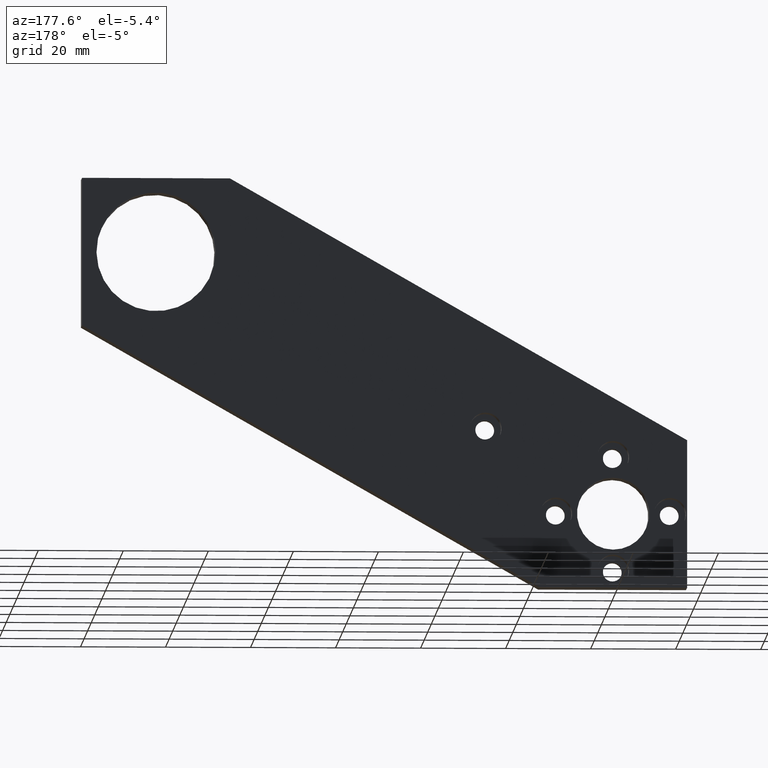
[diagram: clean part render]
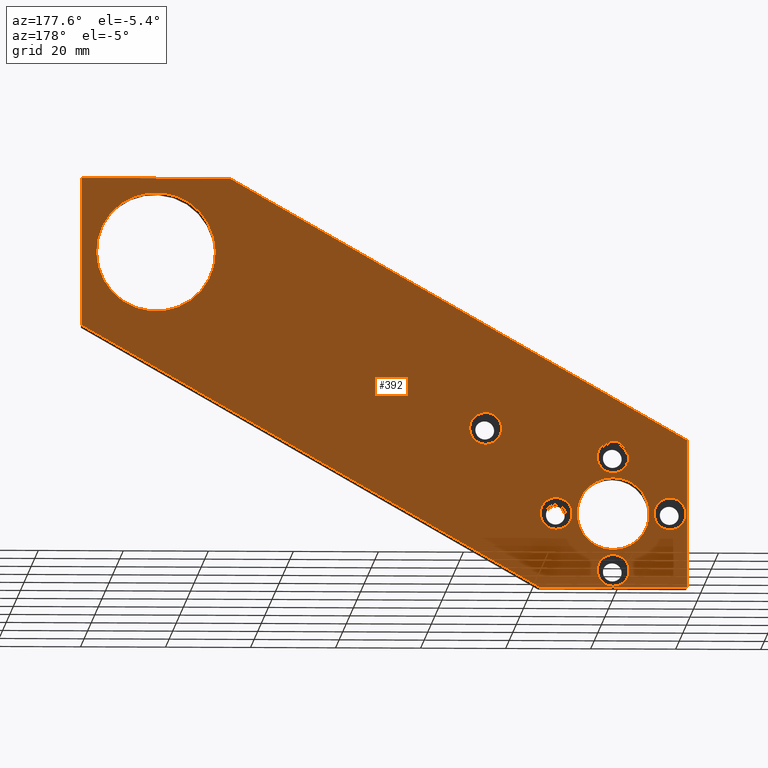
[diagram: same view with one face highlighted and labeled with its STEP entity id]
A machine part, auxiliary view. The second image highlights one B-rep face of the part: STEP entity #392.
In plain terms, the highlighted planar face has unit normal (0, 1, 0).
Its self-contained STEP definition (entity closure, byte-faithful):
#24=LINE('',#611,#42);
#27=LINE('',#616,#45);
#29=LINE('',#663,#47);
#30=LINE('',#665,#48);
#31=LINE('',#667,#49);
#32=LINE('',#668,#50);
#42=VECTOR('',#489,10.);
#45=VECTOR('',#494,10.);
#47=VECTOR('',#552,1000.);
#48=VECTOR('',#553,1000.);
#49=VECTOR('',#554,1000.);
#50=VECTOR('',#555,1000.);
#57=PLANE('',#449);
#86=FACE_BOUND('',#158,.T.);
#87=FACE_BOUND('',#159,.T.);
#88=FACE_BOUND('',#160,.T.);
#89=FACE_BOUND('',#161,.T.);
#90=FACE_BOUND('',#162,.T.);
#91=FACE_BOUND('',#163,.T.);
#92=FACE_BOUND('',#164,.T.);
#113=FACE_OUTER_BOUND('',#157,.T.);
#157=EDGE_LOOP('',(#326,#327,#328,#329,#330,#331));
#158=EDGE_LOOP('',(#332));
#159=EDGE_LOOP('',(#333));
#160=EDGE_LOOP('',(#334));
#161=EDGE_LOOP('',(#335));
#162=EDGE_LOOP('',(#336));
#163=EDGE_LOOP('',(#337));
#164=EDGE_LOOP('',(#338));
#180=CIRCLE('',#412,14.);
#188=CIRCLE('',#424,3.75);
#191=CIRCLE('',#429,3.75);
#194=CIRCLE('',#434,3.75);
#197=CIRCLE('',#439,3.75);
#200=CIRCLE('',#444,3.75);
#202=CIRCLE('',#448,8.5);
#204=VERTEX_POINT('',#581);
#217=VERTEX_POINT('',#609);
#218=VERTEX_POINT('',#610);
#219=VERTEX_POINT('',#615);
#221=VERTEX_POINT('',#621);
#224=VERTEX_POINT('',#629);
#227=VERTEX_POINT('',#637);
#230=VERTEX_POINT('',#645);
#233=VERTEX_POINT('',#653);
#235=VERTEX_POINT('',#659);
#236=VERTEX_POINT('',#662);
#237=VERTEX_POINT('',#664);
#238=VERTEX_POINT('',#666);
#240=EDGE_CURVE('',#204,#204,#180,.T.);
#253=EDGE_CURVE('',#217,#218,#24,.T.);
#256=EDGE_CURVE('',#219,#217,#27,.T.);
#259=EDGE_CURVE('',#221,#221,#188,.T.);
#262=EDGE_CURVE('',#224,#224,#191,.T.);
#265=EDGE_CURVE('',#227,#227,#194,.T.);
#268=EDGE_CURVE('',#230,#230,#197,.T.);
#271=EDGE_CURVE('',#233,#233,#200,.T.);
#273=EDGE_CURVE('',#235,#235,#202,.T.);
#274=EDGE_CURVE('',#236,#218,#29,.T.);
#275=EDGE_CURVE('',#219,#237,#30,.T.);
#276=EDGE_CURVE('',#237,#238,#31,.T.);
#277=EDGE_CURVE('',#238,#236,#32,.T.);
#326=ORIENTED_EDGE('',*,*,#274,.T.);
#327=ORIENTED_EDGE('',*,*,#253,.F.);
#328=ORIENTED_EDGE('',*,*,#256,.F.);
#329=ORIENTED_EDGE('',*,*,#275,.T.);
#330=ORIENTED_EDGE('',*,*,#276,.T.);
#331=ORIENTED_EDGE('',*,*,#277,.T.);
#332=ORIENTED_EDGE('',*,*,#240,.T.);
#333=ORIENTED_EDGE('',*,*,#259,.F.);
#334=ORIENTED_EDGE('',*,*,#262,.F.);
#335=ORIENTED_EDGE('',*,*,#265,.F.);
#336=ORIENTED_EDGE('',*,*,#268,.F.);
#337=ORIENTED_EDGE('',*,*,#271,.F.);
#338=ORIENTED_EDGE('',*,*,#273,.F.);
#392=ADVANCED_FACE('',(#113,#86,#87,#88,#89,#90,#91,#92),#57,.T.);
#412=AXIS2_PLACEMENT_3D('',#582,#465,#466);
#424=AXIS2_PLACEMENT_3D('',#622,#500,#501);
#429=AXIS2_PLACEMENT_3D('',#630,#510,#511);
#434=AXIS2_PLACEMENT_3D('',#638,#520,#521);
#439=AXIS2_PLACEMENT_3D('',#646,#530,#531);
#444=AXIS2_PLACEMENT_3D('',#654,#540,#541);
#448=AXIS2_PLACEMENT_3D('',#660,#548,#549);
#449=AXIS2_PLACEMENT_3D('',#661,#550,#551);
#465=DIRECTION('center_axis',(0.,-1.,0.));
#466=DIRECTION('ref_axis',(-1.,0.,0.));
#489=DIRECTION('',(-1.,0.,0.));
#494=DIRECTION('',(0.,0.,1.));
#500=DIRECTION('center_axis',(0.,1.,0.));
#501=DIRECTION('ref_axis',(0.,0.,1.));
#510=DIRECTION('center_axis',(0.,1.,0.));
#511=DIRECTION('ref_axis',(0.,0.,1.));
#520=DIRECTION('center_axis',(0.,1.,0.));
#521=DIRECTION('ref_axis',(0.,0.,1.));
#530=DIRECTION('center_axis',(0.,1.,0.));
#531=DIRECTION('ref_axis',(0.,0.,1.));
#540=DIRECTION('center_axis',(0.,1.,0.));
#541=DIRECTION('ref_axis',(0.,0.,1.));
#548=DIRECTION('center_axis',(0.,1.,0.));
#549=DIRECTION('ref_axis',(0.,0.,1.));
#550=DIRECTION('center_axis',(0.,1.,0.));
#551=DIRECTION('ref_axis',(0.,0.,1.));
#552=DIRECTION('',(0.868496911613889,0.,0.49569457785731));
#553=DIRECTION('',(-0.868496911613889,0.,-0.49569457785731));
#554=DIRECTION('',(-1.,0.,0.));
#555=DIRECTION('',(0.,0.,1.));
#581=CARTESIAN_POINT('',(93.9980251845734,6.35,64.9240705994484));
#582=CARTESIAN_POINT('Origin',(107.541888,6.35,61.3795283106746));
#609=CARTESIAN_POINT('',(124.941888,6.35,78.7795283106746));
#610=CARTESIAN_POINT('',(90.141888,6.35,78.7795283106746));
#611=CARTESIAN_POINT('',(94.496888,6.35,78.7795283106746));
#615=CARTESIAN_POINT('',(124.941888,6.35,43.9795283106746));
#616=CARTESIAN_POINT('',(124.941888,6.35,67.599619733006));
#621=CARTESIAN_POINT('',(30.,6.35,23.75));
#622=CARTESIAN_POINT('Origin',(30.,6.35,20.));
#629=CARTESIAN_POINT('',(13.4,6.35,3.74999999999986));
#630=CARTESIAN_POINT('Origin',(13.4,6.35,-1.40357549821494E-13));
#637=CARTESIAN_POINT('',(0.,6.35,17.15));
#638=CARTESIAN_POINT('Origin',(0.,6.35,13.4));
#645=CARTESIAN_POINT('',(-13.4,6.35,3.75000000000005));
#646=CARTESIAN_POINT('Origin',(-13.4,6.35,4.6785849940498E-14));
#653=CARTESIAN_POINT('',(0.,6.35,-9.65));
#654=CARTESIAN_POINT('Origin',(0.,6.35,-13.4));
#659=CARTESIAN_POINT('',(0.,6.35,-8.5));
#660=CARTESIAN_POINT('Origin',(0.,6.35,0.));
#661=CARTESIAN_POINT('Origin',(107.561888,6.35,88.7219926197627));
#662=CARTESIAN_POINT('',(-17.4,6.35,17.4));
#663=CARTESIAN_POINT('',(-17.4,6.35,17.4));
#664=CARTESIAN_POINT('',(17.4,6.35,-17.4));
#665=CARTESIAN_POINT('',(17.4,6.35,-17.4));
#666=CARTESIAN_POINT('',(-17.4,6.35,-17.4));
#667=CARTESIAN_POINT('',(-17.4,6.35,-17.4));
#668=CARTESIAN_POINT('',(-17.4,6.35,17.4));